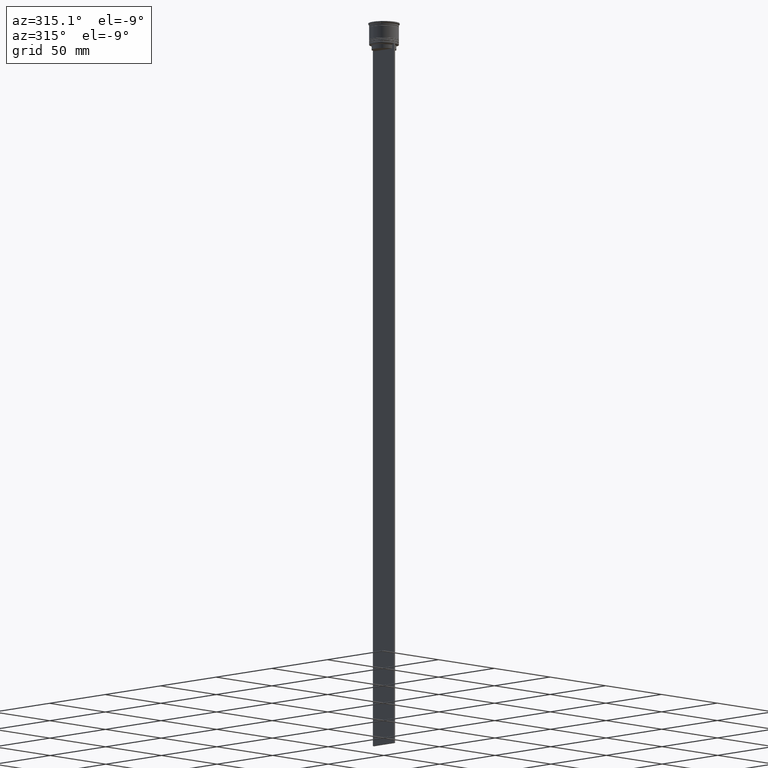
[diagram: clean part render]
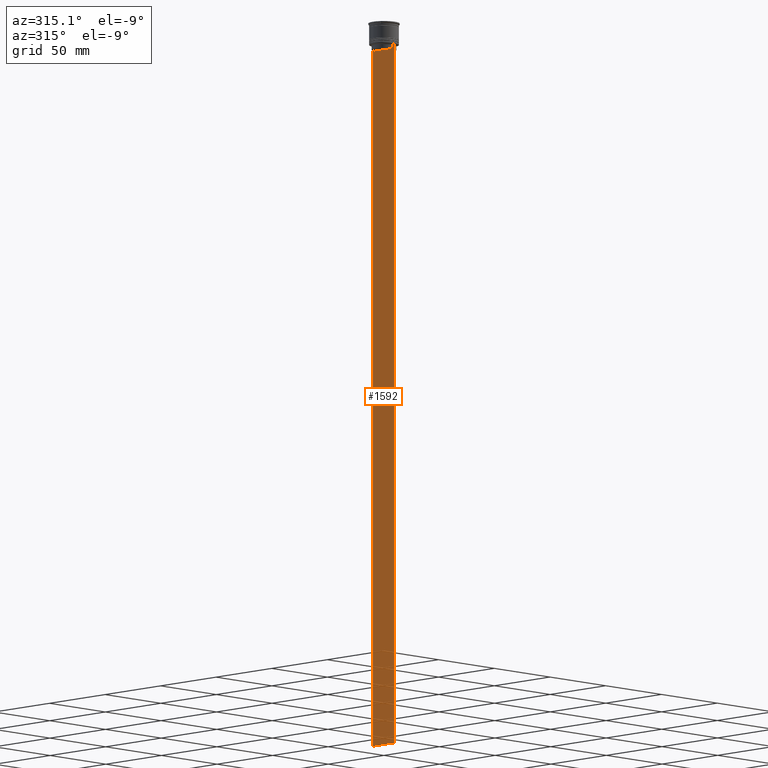
[diagram: same view with one face highlighted and labeled with its STEP entity id]
A machine part, auxiliary view. The second image highlights one B-rep face of the part: STEP entity #1592.
In plain terms, the highlighted planar face has unit normal (-1, 0, 0).
Its self-contained STEP definition (entity closure, byte-faithful):
#5 = VECTOR ( 'NONE', #29, 1000.000000000000000 ) ;
#24 = LINE ( 'NONE', #2271, #881 ) ;
#29 = DIRECTION ( 'NONE',  ( 0.000000000000000000, 0.000000000000000000, -1.000000000000000000 ) ) ;
#47 = CARTESIAN_POINT ( 'NONE',  ( -0.5000000000000000000, -9.500000000000001776, -464.0000000000000000 ) ) ;
#51 = LINE ( 'NONE', #1285, #1994 ) ;
#91 = VECTOR ( 'NONE', #1720, 1000.000000000000000 ) ;
#121 = FACE_OUTER_BOUND ( 'NONE', #1218, .T. ) ;
#161 = VERTEX_POINT ( 'NONE', #876 ) ;
#168 = CARTESIAN_POINT ( 'NONE',  ( -0.5000000000000000000, 9.499999999999994671, -14.00000000000000178 ) ) ;
#231 = DIRECTION ( 'NONE',  ( 0.000000000000000000, 0.000000000000000000, -1.000000000000000000 ) ) ;
#239 = CARTESIAN_POINT ( 'NONE',  ( -0.5000000000000000000, 7.884161337770803080, -17.00000000000000000 ) ) ;
#295 = VERTEX_POINT ( 'NONE', #2600 ) ;
#362 = EDGE_CURVE ( 'NONE', #1489, #2171, #2429, .T. ) ;
#374 = EDGE_CURVE ( 'NONE', #2252, #773, #557, .T. ) ;
#403 = LINE ( 'NONE', #1237, #2593 ) ;
#428 = LINE ( 'NONE', #580, #2254 ) ;
#436 = EDGE_CURVE ( 'NONE', #1652, #985, #403, .T. ) ;
#437 = CARTESIAN_POINT ( 'NONE',  ( -0.5000000000000000000, -9.500000000000001776, 5.026297590440445440 ) ) ;
#454 = LINE ( 'NONE', #1746, #971 ) ;
#468 = VECTOR ( 'NONE', #1273, 1000.000000000000000 ) ;
#515 = EDGE_CURVE ( 'NONE', #2171, #2289, #428, .T. ) ;
#526 = CARTESIAN_POINT ( 'NONE',  ( -0.5000000000000000000, -7.884161337770803080, -14.50000000000000000 ) ) ;
#527 = DIRECTION ( 'NONE',  ( -1.000000000000000000, 0.000000000000000000, 0.000000000000000000 ) ) ;
#531 = ORIENTED_EDGE ( 'NONE', *, *, #515, .F. ) ;
#557 = B_SPLINE_CURVE_WITH_KNOTS ( 'NONE', 3,
 ( #526, #1558, #1001, #2372 ),
 .UNSPECIFIED., .F., .F.,
 ( 4, 4 ),
 ( 0.03673372442973153046, 0.03744389749832059688 ),
 .UNSPECIFIED. ) ;
#580 = CARTESIAN_POINT ( 'NONE',  ( -0.5000000000000000000, 7.899999999999994138, -17.00000000000000000 ) ) ;
#617 = CARTESIAN_POINT ( 'NONE',  ( -0.5000000000000000000, 8.051152811434374001, -14.33334332653219079 ) ) ;
#683 = CARTESIAN_POINT ( 'NONE',  ( -0.5000000000000000000, -7.884161337770803080, 0.000000000000000000 ) ) ;
#758 = VERTEX_POINT ( 'NONE', #779 ) ;
#760 = VERTEX_POINT ( 'NONE', #2568 ) ;
#773 = VERTEX_POINT ( 'NONE', #1744 ) ;
#779 = CARTESIAN_POINT ( 'NONE',  ( -0.5000000000000000000, 8.385105843100605583, -14.00000000000000178 ) ) ;
#800 = PLANE ( 'NONE',  #2087 ) ;
#811 = DIRECTION ( 'NONE',  ( 0.000000000000000000, -1.000000000000000000, 0.000000000000000000 ) ) ;
#846 = EDGE_CURVE ( 'NONE', #773, #1378, #2651, .T. ) ;
#868 = LINE ( 'NONE', #437, #5 ) ;
#876 = CARTESIAN_POINT ( 'NONE',  ( -0.5000000000000000000, -9.500000000000001776, -464.0000000000000000 ) ) ;
#878 = CARTESIAN_POINT ( 'NONE',  ( -0.5000000000000000000, -9.386692708297204035, -14.00000000000000178 ) ) ;
#879 = EDGE_CURVE ( 'NONE', #760, #161, #868, .T. ) ;
#881 = VECTOR ( 'NONE', #811, 1000.000000000000000 ) ;
#935 = EDGE_CURVE ( 'NONE', #1652, #295, #51, .T. ) ;
#971 = VECTOR ( 'NONE', #1938, 1000.000000000000000 ) ;
#985 = VERTEX_POINT ( 'NONE', #1561 ) ;
#1001 = CARTESIAN_POINT ( 'NONE',  ( -0.5000000000000000000, -8.218133703942523738, -14.16667607853445787 ) ) ;
#1059 = CARTESIAN_POINT ( 'NONE',  ( -0.5000000000000000000, 7.884161337770803080, -14.50000000000000000 ) ) ;
#1082 = CARTESIAN_POINT ( 'NONE',  ( -0.5000000000000000000, -7.884161337770803080, -14.50000000000000000 ) ) ;
#1105 = B_SPLINE_CURVE_WITH_KNOTS ( 'NONE', 3,
 ( #1862, #1660, #617, #1059 ),
 .UNSPECIFIED., .F., .F.,
 ( 4, 4 ),
 ( 0.01426761478740281447, 0.01497538974438914448 ),
 .UNSPECIFIED. ) ;
#1171 = ORIENTED_EDGE ( 'NONE', *, *, #2165, .F. ) ;
#1218 = EDGE_LOOP ( 'NONE', ( #1842, #1606, #1974, #1971, #2336, #1478, #1540, #2306, #2266, #1171, #531, #2205 ) ) ;
#1237 = CARTESIAN_POINT ( 'NONE',  ( -0.5000000000000000000, 9.499999999999998224, 5.026297590440445440 ) ) ;
#1273 = DIRECTION ( 'NONE',  ( 0.000000000000000000, -1.000000000000000000, 0.000000000000000000 ) ) ;
#1285 = CARTESIAN_POINT ( 'NONE',  ( -0.5000000000000000000, -9.500000000000001776, -14.00000000000000178 ) ) ;
#1378 = VERTEX_POINT ( 'NONE', #878 ) ;
#1408 = CARTESIAN_POINT ( 'NONE',  ( -0.5000000000000000000, 7.884161337770803080, 0.000000000000000000 ) ) ;
#1478 = ORIENTED_EDGE ( 'NONE', *, *, #879, .F. ) ;
#1481 = VECTOR ( 'NONE', #1511, 1000.000000000000000 ) ;
#1489 = VERTEX_POINT ( 'NONE', #2373 ) ;
#1511 = DIRECTION ( 'NONE',  ( -0.000000000000000000, -0.000000000000000000, 1.000000000000000000 ) ) ;
#1540 = ORIENTED_EDGE ( 'NONE', *, *, #1777, .F. ) ;
#1558 = CARTESIAN_POINT ( 'NONE',  ( -0.5000000000000000000, -8.051152795888546265, -14.33334334204685057 ) ) ;
#1561 = CARTESIAN_POINT ( 'NONE',  ( -0.5000000000000000000, 9.499999999999998224, -464.0000000000000000 ) ) ;
#1592 = ADVANCED_FACE ( 'NONE', ( #121 ), #800, .T. ) ;
#1594 = VECTOR ( 'NONE', #2177, 1000.000000000000000 ) ;
#1606 = ORIENTED_EDGE ( 'NONE', *, *, #1851, .F. ) ;
#1652 = VERTEX_POINT ( 'NONE', #168 ) ;
#1660 = CARTESIAN_POINT ( 'NONE',  ( -0.5000000000000000000, 8.218133718559618828, -14.16667606394327983 ) ) ;
#1720 = DIRECTION ( 'NONE',  ( 0.000000000000000000, 1.000000000000000000, 0.000000000000000000 ) ) ;
#1723 = LINE ( 'NONE', #683, #1481 ) ;
#1744 = CARTESIAN_POINT ( 'NONE',  ( -0.5000000000000000000, -8.385105843100605583, -14.00000000000000178 ) ) ;
#1746 = CARTESIAN_POINT ( 'NONE',  ( -0.5000000000000000000, -9.500000000000001776, -14.00000000000000178 ) ) ;
#1777 = EDGE_CURVE ( 'NONE', #1378, #760, #24, .T. ) ;
#1833 = DIRECTION ( 'NONE',  ( 0.000000000000000000, -1.000000000000000000, 0.000000000000000000 ) ) ;
#1842 = ORIENTED_EDGE ( 'NONE', *, *, #2409, .F. ) ;
#1851 = EDGE_CURVE ( 'NONE', #295, #758, #454, .T. ) ;
#1862 = CARTESIAN_POINT ( 'NONE',  ( -0.5000000000000000000, 8.385105843100605583, -14.00000000000000178 ) ) ;
#1885 = CARTESIAN_POINT ( 'NONE',  ( -0.5000000000000000000, -9.500000000000001776, -14.00000000000000178 ) ) ;
#1938 = DIRECTION ( 'NONE',  ( 0.000000000000000000, -1.000000000000000000, 0.000000000000000000 ) ) ;
#1971 = ORIENTED_EDGE ( 'NONE', *, *, #436, .T. ) ;
#1974 = ORIENTED_EDGE ( 'NONE', *, *, #935, .F. ) ;
#1994 = VECTOR ( 'NONE', #2246, 1000.000000000000000 ) ;
#2087 = AXIS2_PLACEMENT_3D ( 'NONE', #2417, #527, #2388 ) ;
#2165 = EDGE_CURVE ( 'NONE', #2289, #2252, #1723, .T. ) ;
#2171 = VERTEX_POINT ( 'NONE', #239 ) ;
#2177 = DIRECTION ( 'NONE',  ( 0.000000000000000000, 0.000000000000000000, -1.000000000000000000 ) ) ;
#2205 = ORIENTED_EDGE ( 'NONE', *, *, #362, .F. ) ;
#2246 = DIRECTION ( 'NONE',  ( 0.000000000000000000, -1.000000000000000000, 0.000000000000000000 ) ) ;
#2252 = VERTEX_POINT ( 'NONE', #1082 ) ;
#2254 = VECTOR ( 'NONE', #1833, 1000.000000000000000 ) ;
#2266 = ORIENTED_EDGE ( 'NONE', *, *, #374, .F. ) ;
#2271 = CARTESIAN_POINT ( 'NONE',  ( -0.5000000000000000000, -9.500000000000001776, -14.00000000000000178 ) ) ;
#2289 = VERTEX_POINT ( 'NONE', #2622 ) ;
#2306 = ORIENTED_EDGE ( 'NONE', *, *, #846, .F. ) ;
#2332 = LINE ( 'NONE', #47, #91 ) ;
#2336 = ORIENTED_EDGE ( 'NONE', *, *, #2673, .F. ) ;
#2372 = CARTESIAN_POINT ( 'NONE',  ( -0.5000000000000000000, -8.385105843100605583, -14.00000000000000178 ) ) ;
#2373 = CARTESIAN_POINT ( 'NONE',  ( -0.5000000000000000000, 7.884161337770803080, -14.50000000000000000 ) ) ;
#2388 = DIRECTION ( 'NONE',  ( 0.000000000000000000, 0.000000000000000000, 1.000000000000000000 ) ) ;
#2409 = EDGE_CURVE ( 'NONE', #758, #1489, #1105, .T. ) ;
#2417 = CARTESIAN_POINT ( 'NONE',  ( -0.5000000000000000000, -9.500000000000001776, 5.026297590440445440 ) ) ;
#2429 = LINE ( 'NONE', #1408, #1594 ) ;
#2568 = CARTESIAN_POINT ( 'NONE',  ( -0.5000000000000000000, -9.500000000000001776, -14.00000000000000178 ) ) ;
#2593 = VECTOR ( 'NONE', #231, 1000.000000000000000 ) ;
#2600 = CARTESIAN_POINT ( 'NONE',  ( -0.5000000000000000000, 9.386692708297204035, -14.00000000000000178 ) ) ;
#2622 = CARTESIAN_POINT ( 'NONE',  ( -0.5000000000000000000, -7.884161337770803080, -17.00000000000000000 ) ) ;
#2651 = LINE ( 'NONE', #1885, #468 ) ;
#2673 = EDGE_CURVE ( 'NONE', #161, #985, #2332, .T. ) ;